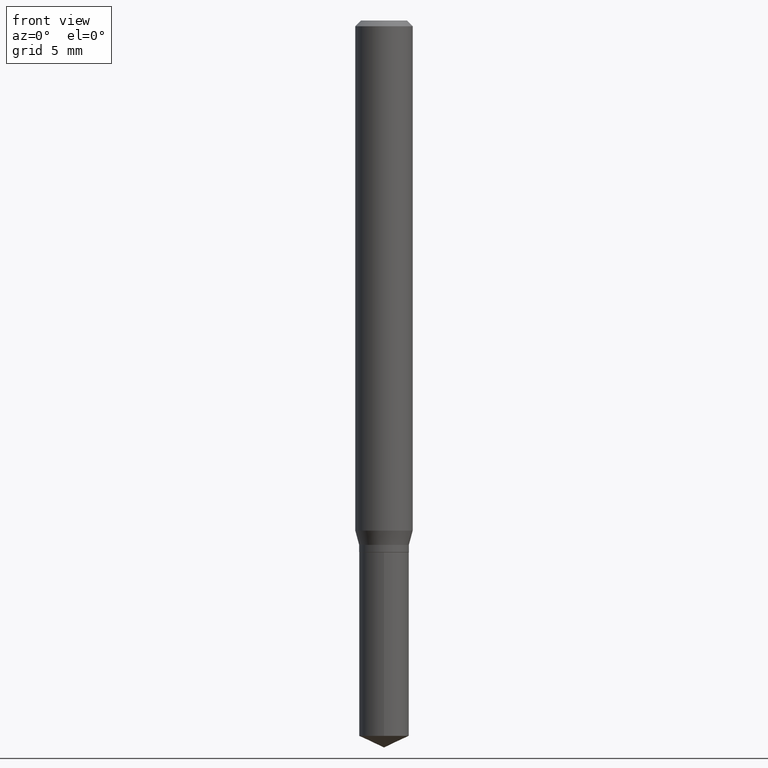
[diagram: clean part render]
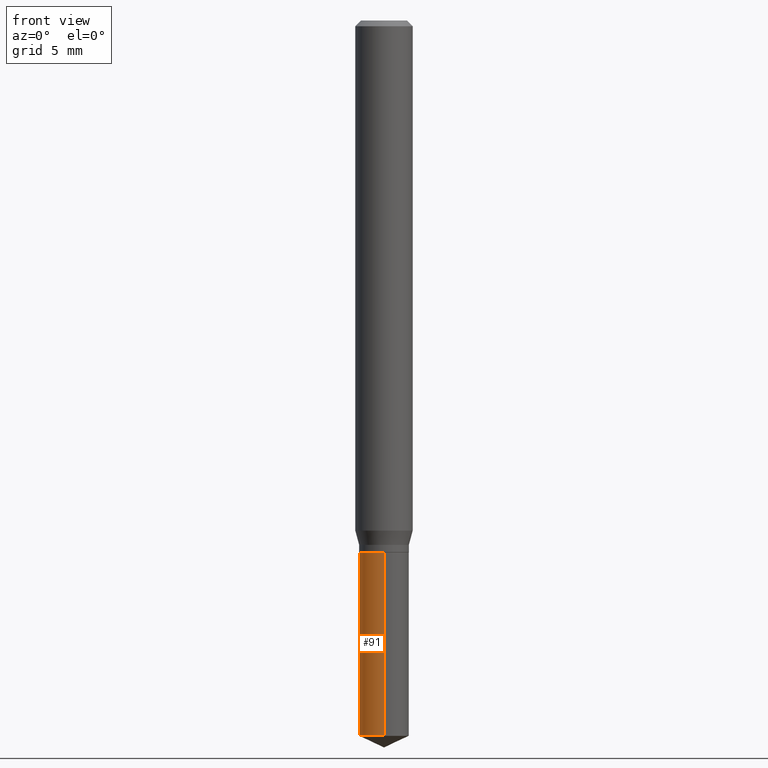
[diagram: same view with one face highlighted and labeled with its STEP entity id]
A machine part, front view. The second image highlights one B-rep face of the part: STEP entity #91.
In plain terms, the highlighted cylindrical surface (edge-blend (fillet) strip) has radius 1.3005 mm, axis along (-0, 0, 1).
Its self-contained STEP definition (entity closure, byte-faithful):
#2 = CARTESIAN_POINT ( 'NONE',  ( 3.600238699489957848E-29, -5.140306042266869931E-15, -1.472225047902464112 ) ) ;
#6 = CARTESIAN_POINT ( 'NONE',  ( 3.637978807092073044E-16, 0.05119999999999617912, -1.094500000000000028 ) ) ;
#12 = AXIS2_PLACEMENT_3D ( 'NONE', #2, #237, #156 ) ;
#20 = CIRCLE ( 'NONE', #305, 0.05120000000000000939 ) ;
#24 = LINE ( 'NONE', #335, #293 ) ;
#65 = DIRECTION ( 'NONE',  ( -2.445358326776455790E-29, 3.491639551644474585E-15, 1.000000000000000000 ) ) ;
#75 = DIRECTION ( 'NONE',  ( -6.982962677686265133E-15, -1.000000000000000000, 2.667820306312756424E-15 ) ) ;
#78 = CARTESIAN_POINT ( 'NONE',  ( -3.575276890975101258E-16, -0.05120000000000383272, -1.094499999999999806 ) ) ;
#88 = DIRECTION ( 'NONE',  ( -6.982962677686265133E-15, -1.000000000000000000, 2.667820306312756424E-15 ) ) ;
#91 = ADVANCED_FACE ( 'NONE', ( #129 ), #429, .T. ) ;
#103 = ORIENTED_EDGE ( 'NONE', *, *, #414, .F. ) ;
#114 = ORIENTED_EDGE ( 'NONE', *, *, #167, .F. ) ;
#119 = ORIENTED_EDGE ( 'NONE', *, *, #340, .T. ) ;
#129 = FACE_OUTER_BOUND ( 'NONE', #415, .T. ) ;
#147 = ORIENTED_EDGE ( 'NONE', *, *, #455, .T. ) ;
#156 = DIRECTION ( 'NONE',  ( -6.982962677686265133E-15, -1.000000000000000000, 5.335640612625512847E-15 ) ) ;
#159 = VERTEX_POINT ( 'NONE', #252 ) ;
#167 = EDGE_CURVE ( 'NONE', #159, #449, #24, .T. ) ;
#194 = VERTEX_POINT ( 'NONE', #472 ) ;
#195 = DIRECTION ( 'NONE',  ( -2.445358326776455510E-29, 3.491639551644474585E-15, 1.000000000000000000 ) ) ;
#207 = CIRCLE ( 'NONE', #12, 0.05120000000000000939 ) ;
#234 = VECTOR ( 'NONE', #235, 39.37007874015748143 ) ;
#235 = DIRECTION ( 'NONE',  ( -2.445358326776455790E-29, 3.491639551644474585E-15, 1.000000000000000000 ) ) ;
#237 = DIRECTION ( 'NONE',  ( -2.445358326776455510E-29, 3.491639551644474585E-15, 1.000000000000000000 ) ) ;
#239 = AXIS2_PLACEMENT_3D ( 'NONE', #426, #435, #88 ) ;
#252 = CARTESIAN_POINT ( 'NONE',  ( 3.637978807092074523E-16, 0.05119999999999487461, -1.472225047902464334 ) ) ;
#271 = VERTEX_POINT ( 'NONE', #279 ) ;
#279 = CARTESIAN_POINT ( 'NONE',  ( -3.575276890975009060E-16, -0.05120000000000516499, -1.472225047902463890 ) ) ;
#293 = VECTOR ( 'NONE', #65, 39.37007874015748143 ) ;
#300 = CARTESIAN_POINT ( 'NONE',  ( 2.676565608369631794E-29, -3.821426325363822773E-15, -1.094499999999999806 ) ) ;
#305 = AXIS2_PLACEMENT_3D ( 'NONE', #300, #195, #75 ) ;
#335 = CARTESIAN_POINT ( 'NONE',  ( 3.637978807091980353E-16, 0.05119999999999617912, -1.094500000000000028 ) ) ;
#340 = EDGE_CURVE ( 'NONE', #159, #271, #207, .T. ) ;
#414 = EDGE_CURVE ( 'NONE', #449, #194, #20, .T. ) ;
#415 = EDGE_LOOP ( 'NONE', ( #114, #119, #147, #103 ) ) ;
#426 = CARTESIAN_POINT ( 'NONE',  ( 2.676565608369631794E-29, -3.821426325363822773E-15, -1.094499999999999806 ) ) ;
#427 = LINE ( 'NONE', #78, #234 ) ;
#429 = CYLINDRICAL_SURFACE ( 'NONE', #239, 0.05120000000000000939 ) ;
#435 = DIRECTION ( 'NONE',  ( -2.445358326776455510E-29, 3.491639551644474585E-15, 1.000000000000000000 ) ) ;
#449 = VERTEX_POINT ( 'NONE', #6 ) ;
#455 = EDGE_CURVE ( 'NONE', #271, #194, #427, .T. ) ;
#472 = CARTESIAN_POINT ( 'NONE',  ( -3.575276890975101258E-16, -0.05120000000000383272, -1.094499999999999806 ) ) ;